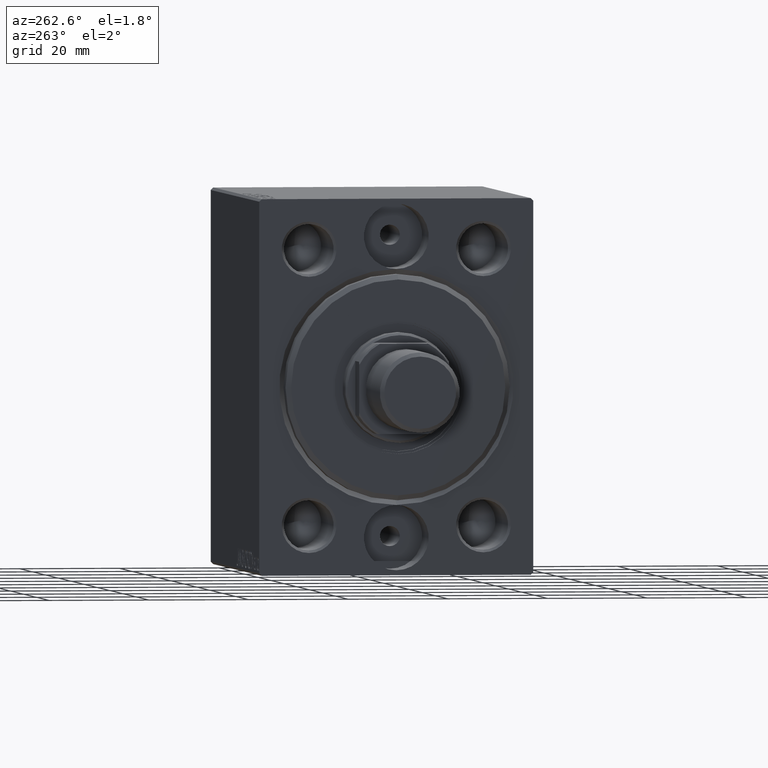
[diagram: clean part render]
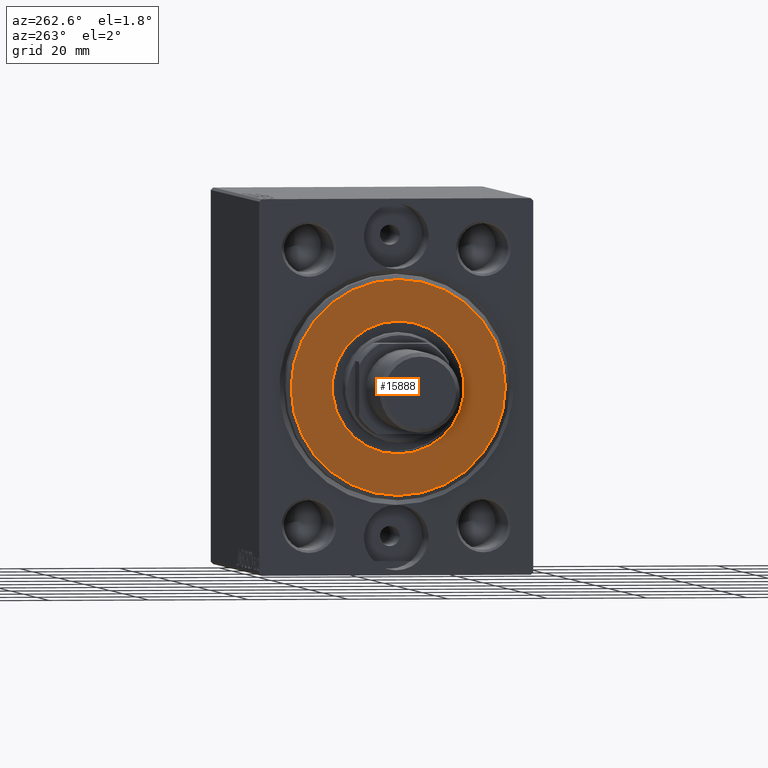
[diagram: same view with one face highlighted and labeled with its STEP entity id]
A machine part, auxiliary view. The second image highlights one B-rep face of the part: STEP entity #15888.
In plain terms, the highlighted planar face has unit normal (-1, 0, 0).
Its self-contained STEP definition (entity closure, byte-faithful):
#1229 = DIRECTION ( 'NONE',  ( 1.000000000000000000, 0.000000000000000000, 0.000000000000000000 ) ) ;
#1609 = CARTESIAN_POINT ( 'NONE',  ( 3.000000000000000000, 0.000000000000000000, 0.000000000000000000 ) ) ;
#2169 = AXIS2_PLACEMENT_3D ( 'NONE', #11791, #1229, #21707 ) ;
#2390 = AXIS2_PLACEMENT_3D ( 'NONE', #1609, #15316, #19151 ) ;
#2640 = VERTEX_POINT ( 'NONE', #41828 ) ;
#2666 = ORIENTED_EDGE ( 'NONE', *, *, #3632, .F. ) ;
#3220 = AXIS2_PLACEMENT_3D ( 'NONE', #24619, #21694, #35200 ) ;
#3632 = EDGE_CURVE ( 'NONE', #36750, #21399, #33369, .T. ) ;
#9906 = DIRECTION ( 'NONE',  ( 1.000000000000000000, -0.000000000000000000, 0.000000000000000000 ) ) ;
#10007 = CARTESIAN_POINT ( 'NONE',  ( 3.000000000000000000, 0.000000000000000000, 0.000000000000000000 ) ) ;
#11791 = CARTESIAN_POINT ( 'NONE',  ( 3.000000000000000000, 0.000000000000000000, 0.000000000000000000 ) ) ;
#12426 = CIRCLE ( 'NONE', #2390, 21.50000000000000355 ) ;
#13373 = FACE_BOUND ( 'NONE', #17473, .T. ) ;
#15316 = DIRECTION ( 'NONE',  ( 1.000000000000000000, -0.000000000000000000, 0.000000000000000000 ) ) ;
#15888 = ADVANCED_FACE ( 'NONE', ( #33866, #13373 ), #40859, .T. ) ;
#16320 = VERTEX_POINT ( 'NONE', #19976 ) ;
#16477 = CARTESIAN_POINT ( 'NONE',  ( 3.000000000000000000, 1.622657008870243277E-15, 13.25000000000000178 ) ) ;
#17473 = EDGE_LOOP ( 'NONE', ( #2666, #43741 ) ) ;
#17766 = EDGE_CURVE ( 'NONE', #16320, #2640, #20710, .T. ) ;
#17774 = AXIS2_PLACEMENT_3D ( 'NONE', #10007, #23727, #37467 ) ;
#18542 = AXIS2_PLACEMENT_3D ( 'NONE', #40760, #9906, #20258 ) ;
#18731 = ORIENTED_EDGE ( 'NONE', *, *, #27116, .T. ) ;
#19151 = DIRECTION ( 'NONE',  ( 0.000000000000000000, 0.000000000000000000, -1.000000000000000000 ) ) ;
#19976 = CARTESIAN_POINT ( 'NONE',  ( 3.000000000000000000, 2.694222958124177598E-15, -21.50000000000000355 ) ) ;
#20258 = DIRECTION ( 'NONE',  ( 0.000000000000000000, 0.000000000000000000, -1.000000000000000000 ) ) ;
#20710 = CIRCLE ( 'NONE', #18542, 21.50000000000000355 ) ;
#21399 = VERTEX_POINT ( 'NONE', #16477 ) ;
#21694 = DIRECTION ( 'NONE',  ( 1.000000000000000000, 0.000000000000000000, 0.000000000000000000 ) ) ;
#21707 = DIRECTION ( 'NONE',  ( 0.000000000000000000, 0.000000000000000000, -1.000000000000000000 ) ) ;
#22924 = ORIENTED_EDGE ( 'NONE', *, *, #17766, .T. ) ;
#23727 = DIRECTION ( 'NONE',  ( 1.000000000000000000, -0.000000000000000000, 0.000000000000000000 ) ) ;
#23982 = EDGE_CURVE ( 'NONE', #21399, #36750, #39572, .T. ) ;
#24619 = CARTESIAN_POINT ( 'NONE',  ( 3.000000000000000000, 0.000000000000000000, 0.000000000000000000 ) ) ;
#27116 = EDGE_CURVE ( 'NONE', #2640, #16320, #12426, .T. ) ;
#30716 = EDGE_LOOP ( 'NONE', ( #18731, #22924 ) ) ;
#33369 = CIRCLE ( 'NONE', #3220, 13.25000000000000178 ) ;
#33866 = FACE_OUTER_BOUND ( 'NONE', #30716, .T. ) ;
#35200 = DIRECTION ( 'NONE',  ( 0.000000000000000000, 0.000000000000000000, -1.000000000000000000 ) ) ;
#36750 = VERTEX_POINT ( 'NONE', #39030 ) ;
#37467 = DIRECTION ( 'NONE',  ( 0.000000000000000000, 0.000000000000000000, -1.000000000000000000 ) ) ;
#39030 = CARTESIAN_POINT ( 'NONE',  ( 3.000000000000000000, 0.000000000000000000, -13.25000000000000178 ) ) ;
#39572 = CIRCLE ( 'NONE', #2169, 13.25000000000000178 ) ;
#40760 = CARTESIAN_POINT ( 'NONE',  ( 3.000000000000000000, 0.000000000000000000, 0.000000000000000000 ) ) ;
#40859 = PLANE ( 'NONE',  #17774 ) ;
#41828 = CARTESIAN_POINT ( 'NONE',  ( 3.000000000000000000, 0.000000000000000000, 21.50000000000000355 ) ) ;
#43741 = ORIENTED_EDGE ( 'NONE', *, *, #23982, .F. ) ;